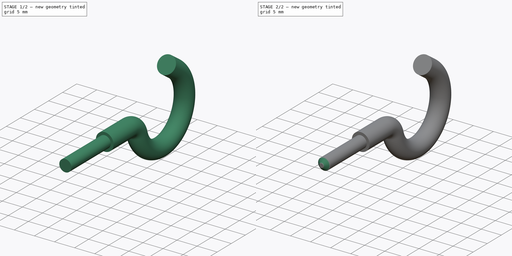
[diagram: build sequence overview — one tinted view per stage of 2, left to right]
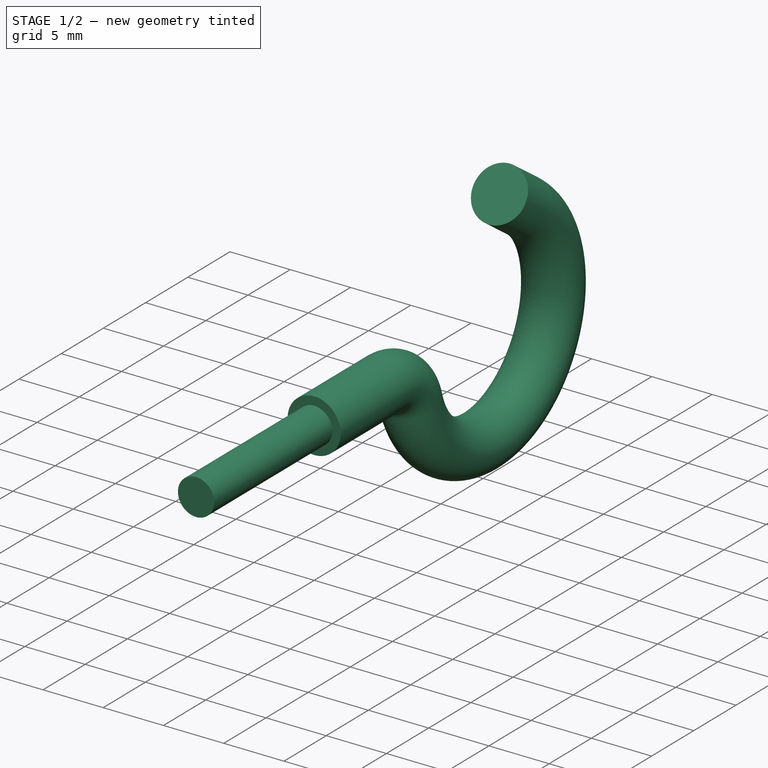
[diagram: stage 1 of 2 — iso view after this stage's code; geometry added in this stage tinted green]
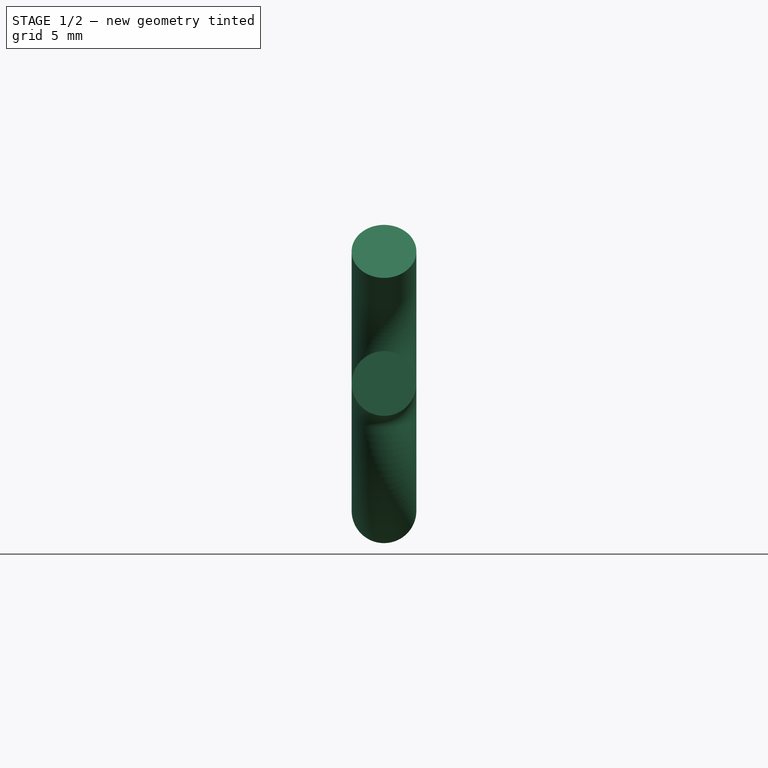
[diagram: stage 1 of 2 — front view after this stage's code; geometry added in this stage tinted green]
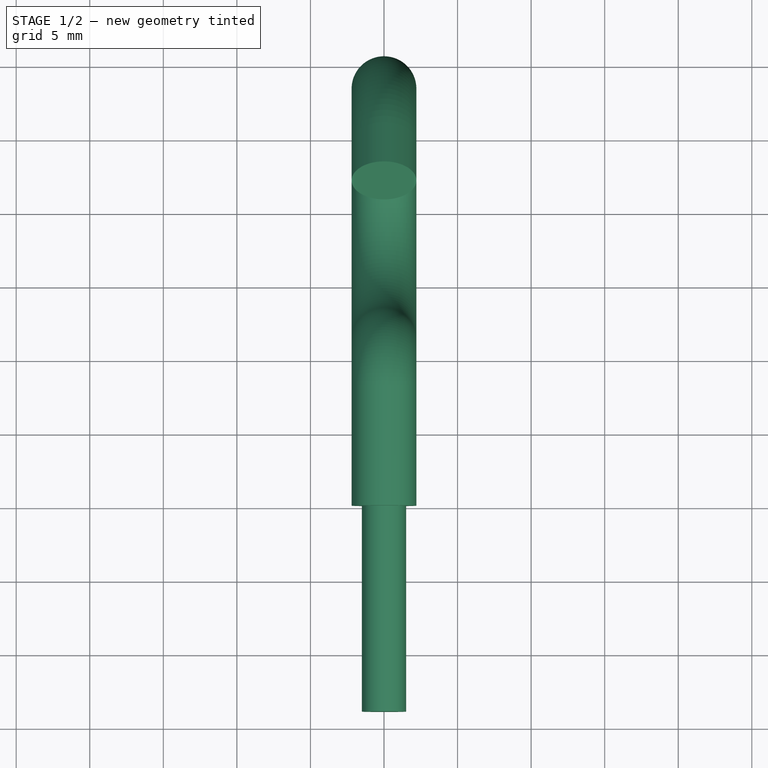
[diagram: stage 1 of 2 — top view after this stage's code; geometry added in this stage tinted green]
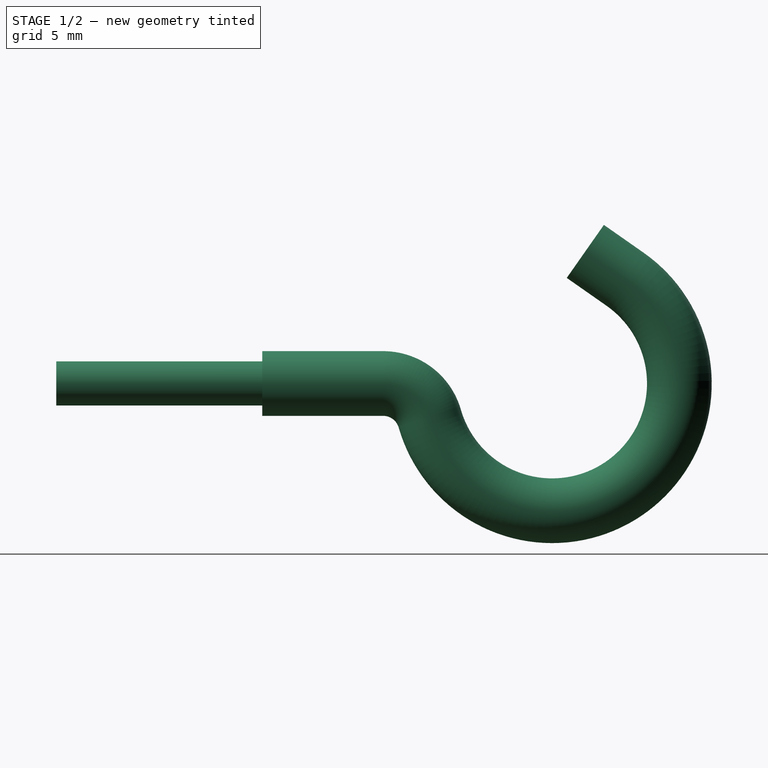
[diagram: stage 1 of 2 — right view after this stage's code; geometry added in this stage tinted green]
FCSTD DOCUMENT  (FreeCAD 0.14R3700 (Git))
Label: Schraubhaken_3_3-40
License: CC-BY 3.0
LicenseURL: http://creativecommons.org/licenses/by/3.0/
objects: Sketcher::SketchObject×3, Part::Sweep×1, PartDesign::Pad×1, PartDesign::Chamfer×1, Part::Feature×1
note: 8 computed .brp shape members not serialized (recipe doc carries the construction recipe); baked Part::Feature solids carry a one-line shape summary decoded from their .brp

FEATURE [Sketcher::SketchObject] Sketch
  Placement = pos=(0,0,0) rot=(0.57735,0.57735,0.57735;2.0944rad)
  sketch-geometry (5):
    g0: LineSegment StartX=0 StartY=0 StartZ=0 EndX=8.21468 EndY=0 EndZ=0
    g1: ArcOfCircle CenterX=8.21468 CenterY=-3.3 CenterZ=0 NormalX=0 NormalY=0 NormalZ=1 Radius=3.3 StartAngle=0.279786 EndAngle=1.5708
    g2: ArcOfCircle CenterX=19.7 CenterY=0 CenterZ=0 NormalX=0 NormalY=0 NormalZ=1 Radius=8.65 StartAngle=3.42138 EndAngle=7.24312
    g3: LineSegment StartX=24.6614 StartY=7.08567 StartZ=0 EndX=21.9582 EndY=8.97848 EndZ=0
    g4: LineSegment [constr] StartX=19.7 StartY=0 StartZ=0 EndX=24.6614 EndY=7.08567 EndZ=0
  constraints (16):
    c: Coincident(g0,g-1)
    c: PointOnObject(g0,g-1)
    c: Coincident(g1,g0)
    c: PointOnObject(g2,g-1)
    c: Coincident(g2,g1)
    c: Coincident(g3,g2)
    c: Tangent(g2,g1)
    c: Radius(g2) = 8.65
    c: Coincident(g4,g2)
    c: Coincident(g4,g2)
    c: Tangent(g1,g0)
    c: Radius(g1) = 3.3
    c: DistanceX(g-1,g2) = 19.7
    c: Angle(g4,g-1) = 2.18166
    c: Tangent(g3,g2)
    c: Distance(g3) = 3.3
FEATURE [Sketcher::SketchObject] Sketch001
  Placement = pos=(0,0,0) rot=(1,0,0;1.5708rad)
  sketch-geometry (1):
    g0: Circle CenterX=0 CenterY=0 CenterZ=0 NormalX=0 NormalY=0 NormalZ=1 Radius=2.2
  constraints (2):
    c: Coincident(g0,g-1)
    c: Radius(g0) = 2.2
FEATURE [Part::Sweep] Sweep
  Frenet = true
  Sections = -> [Sketch001]
  Solid = true
  Spine = -> Sketch
  Transition = 1
FEATURE [Sketcher::SketchObject] Sketch002
  Placement = pos=(0,0,0) rot=(1,0,0;1.5708rad)
  Support = -> Sweep [Face5]
  sketch-geometry (1):
    g0: Circle CenterX=0 CenterY=0 CenterZ=0 NormalX=0 NormalY=0 NormalZ=1 Radius=1.5
  constraints (2):
    c: Coincident(g0,g-1)
    c: Radius(g0) = 1.5
FEATURE [PartDesign::Pad] Pad
  Length = 14
  Length2 = 100
  Sketch = -> Sketch002
  Type = 0
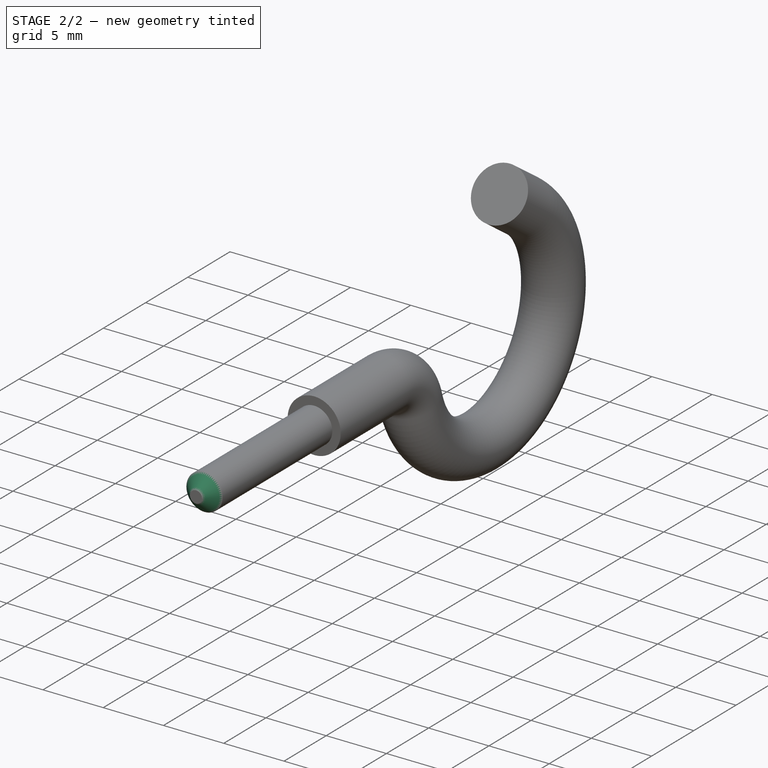
[diagram: stage 2 of 2 — iso view after this stage's code; geometry added in this stage tinted green]
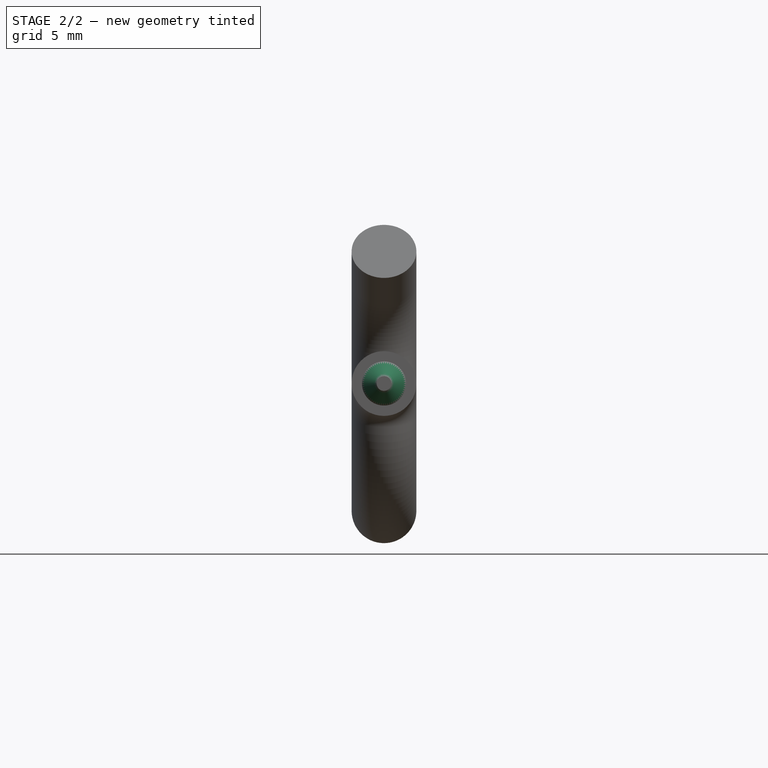
[diagram: stage 2 of 2 — front view after this stage's code; geometry added in this stage tinted green]
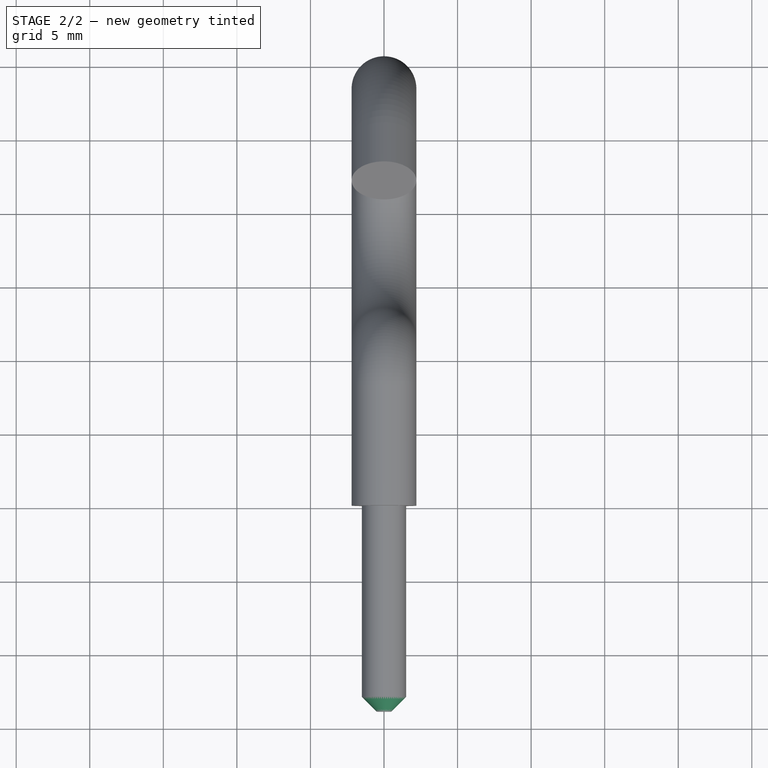
[diagram: stage 2 of 2 — top view after this stage's code; geometry added in this stage tinted green]
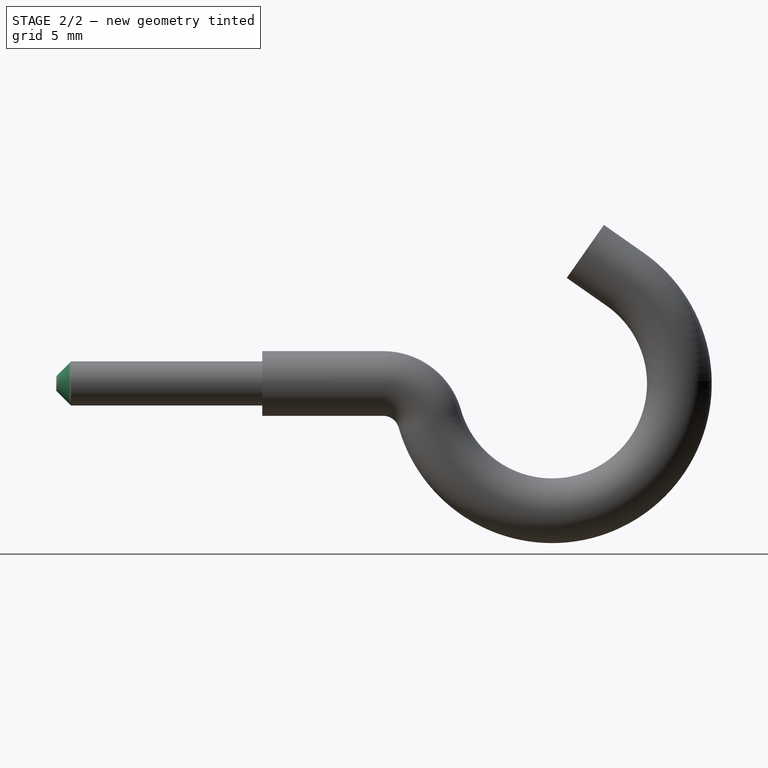
[diagram: stage 2 of 2 — right view after this stage's code; geometry added in this stage tinted green]
FEATURE [PartDesign::Chamfer] Chamfer
  Base = -> Pad [Edge8]
  Size = 1
FEATURE [Part::Feature] Chamfer001  label="Schraubhaken_3,3-40"
  shape: bbox 4.4 x 45.44 x 22.52 mm, 9 faces (baked)
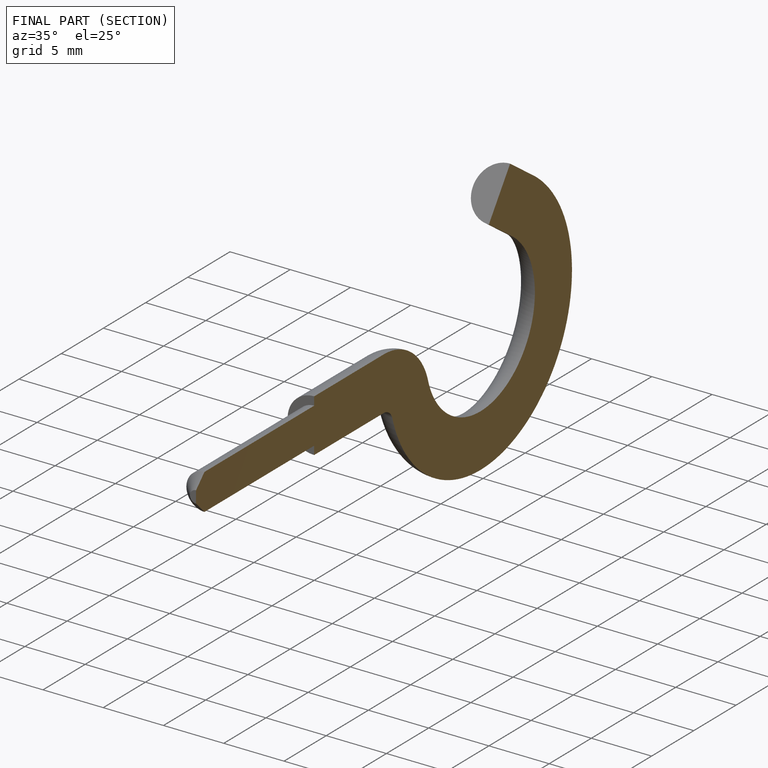
[diagram: finished part — half-section view (interior)]
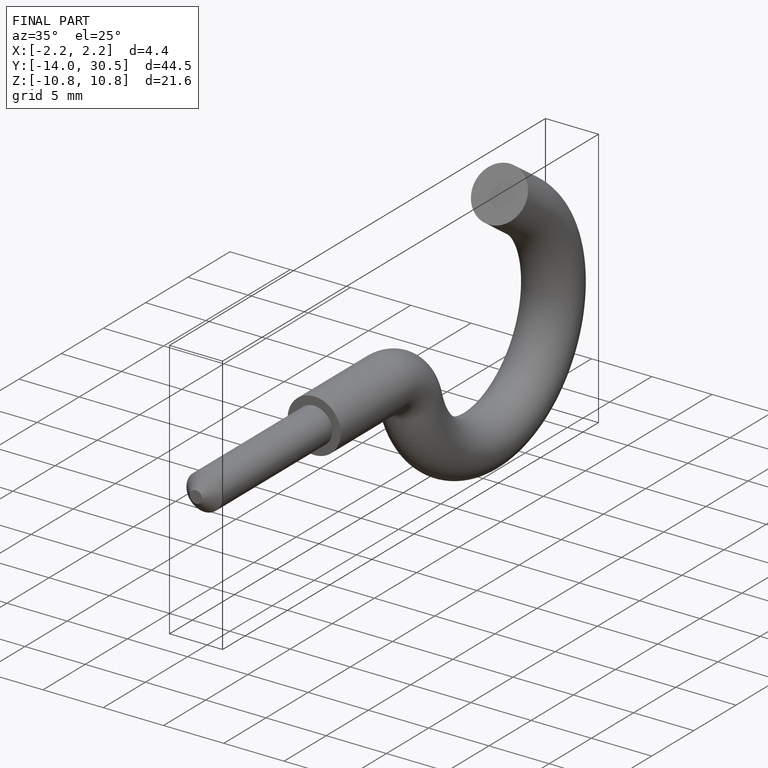
[diagram: finished part — iso view with bounding-box wireframe]
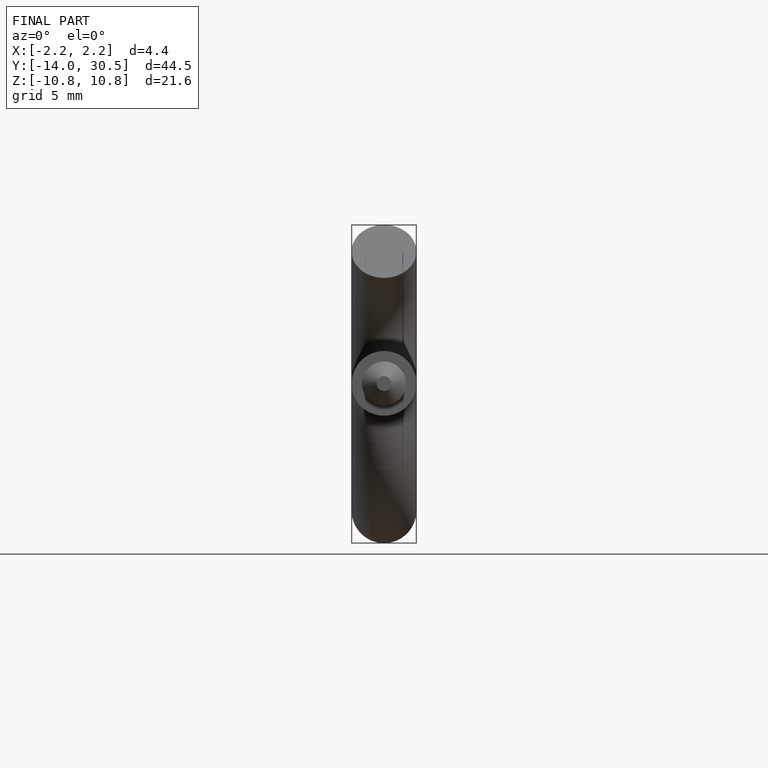
[diagram: finished part — front view with bounding-box wireframe]
